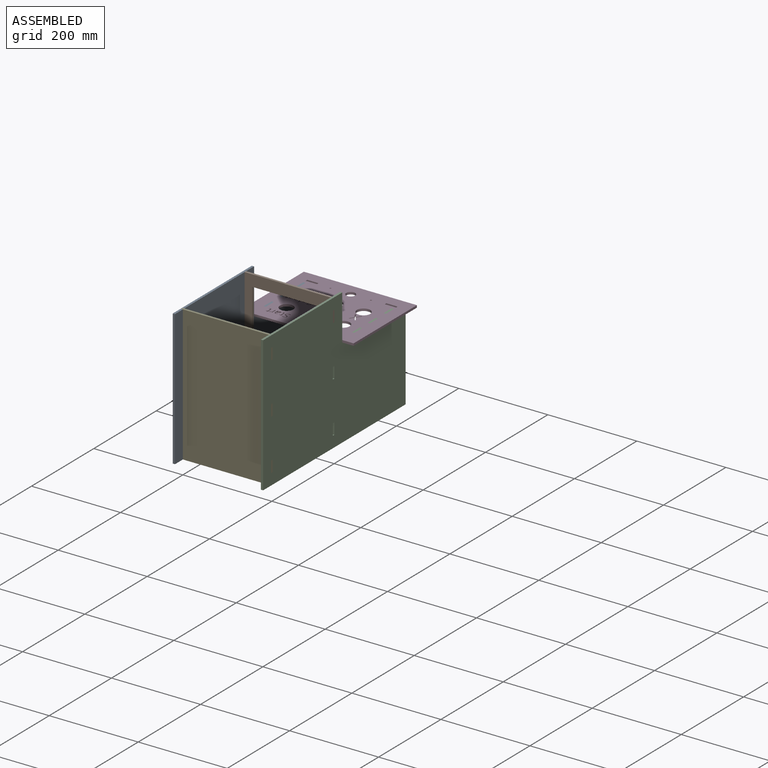
[diagram: assembled view]
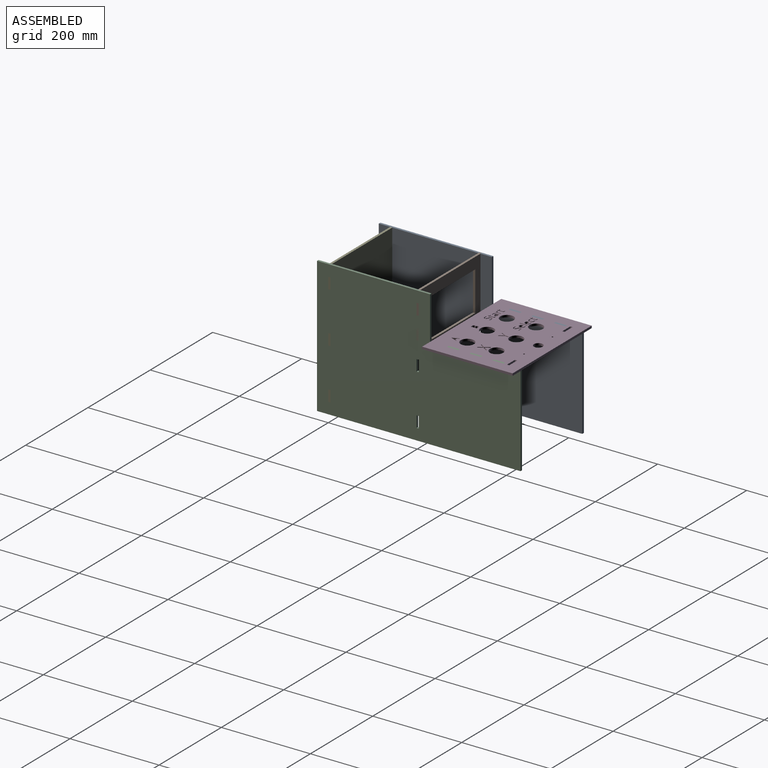
[diagram: assembled view, second angle]
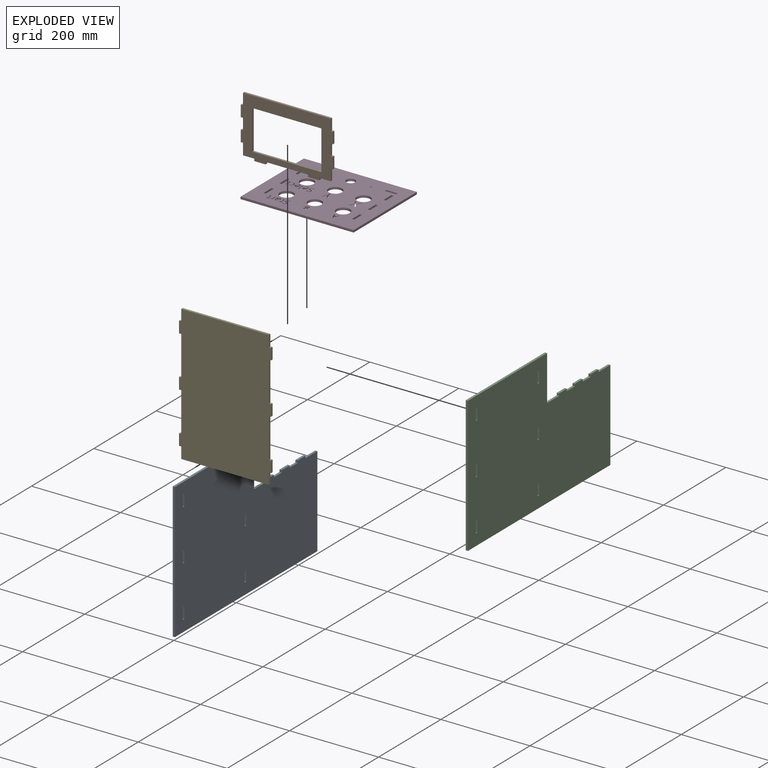
[diagram: exploded view]
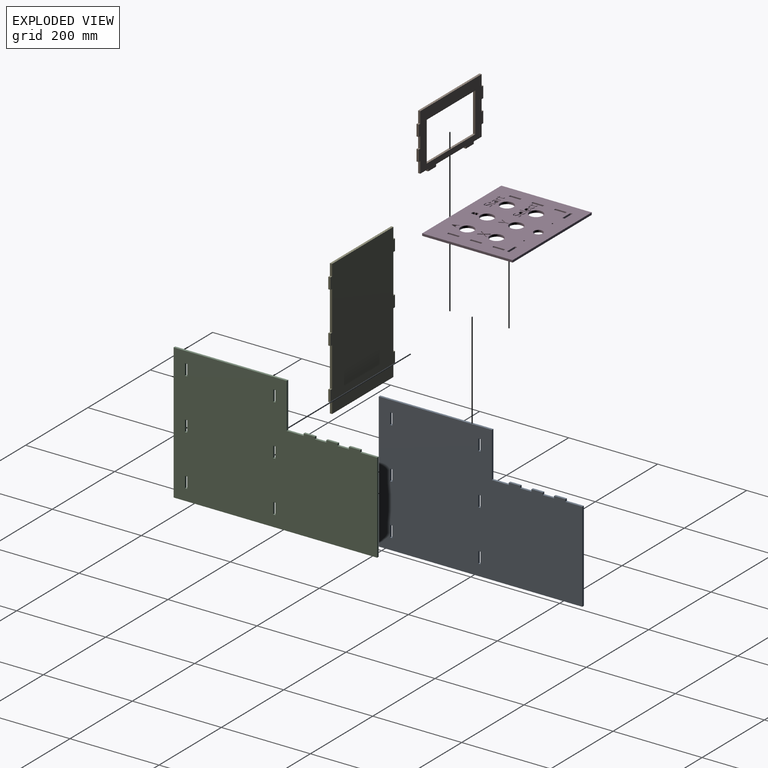
[diagram: exploded view, second angle]
ASSEMBLY  parts=5 mates=4
PART A: 44 faces, bbox 457.2x5x304.8 mm
  f0: plane 25.4x5mm, normal (1,0,0), area 127mm2, adj f1,f41,f42,f43
  f1: plane 5x5mm, normal (0,0,-1), area 25mm2, adj f0,f2,f42,f43
  f2: plane 25.4x5mm, normal (-1,0,0), area 127mm2, adj f1,f41,f42,f43
  f3: plane 25.4x5mm, normal (1,0,0), area 127mm2, adj f4,f35,f42,f43
  f4: plane 5x5mm, normal (0,0,-1), area 25mm2, adj f3,f5,f42,f43
  f5: plane 25.4x5mm, normal (-1,0,0), area 127mm2, adj f4,f35,f42,f43
  f6: plane 25.4x5mm, normal (1,0,0), area 127mm2, adj f7,f36,f42,f43
  f7: plane 5x5mm, normal (0,0,-1), area 25mm2, adj f6,f8,f42,f43
  f8: plane 25.4x5mm, normal (-1,0,0), area 127mm2, adj f7,f36,f42,f43
  f9: plane 25.4x5mm, normal (1,0,0), area 127mm2, adj f10,f37,f42,f43
  f10: plane 5x5mm, normal (0,0,-1), area 25mm2, adj f9,f11,f42,f43
  f11: plane 25.4x5mm, normal (-1,0,0), area 127mm2, adj f10,f37,f42,f43
  f12: plane 25.4x5mm, normal (1,0,0), area 127mm2, adj f13,f38,f42,f43
  f13: plane 5x5mm, normal (0,0,-1), area 25mm2, adj f12,f14,f42,f43
  f14: plane 25.4x5mm, normal (-1,0,0), area 127mm2, adj f13,f38,f42,f43
  f15: plane 25.4x5mm, normal (1,0,0), area 127mm2, adj f16,f39,f42,f43
  f16: plane 5x5mm, normal (0,0,-1), area 25mm2, adj f15,f17,f42,f43
  f17: plane 25.4x5mm, normal (-1,0,0), area 127mm2, adj f16,f39,f42,f43
  f18: plane 5x5mm, normal (-1,0,0), area 25mm2, adj f19,f40,f42,f43
  f19: plane 25.4x5mm, normal (0,0,1), area 127mm2, adj f18,f20,f42,f43
  f20: plane 5x5mm, normal (1,0,0), area 25mm2, adj f19,f21,f42,f43
  f21: plane 25.4x5mm, normal (0,0,1), area 127mm2, adj f20,f22,f42,f43
  f22: plane 5x5mm, normal (-1,0,0), area 25mm2, adj f21,f23,f42,f43
  f23: plane 25.4x5mm, normal (0,0,1), area 127mm2, adj f22,f24,f42,f43
  f24: plane 5x5mm, normal (1,0,0), area 25mm2, adj f23,f25,f42,f43
  f25: plane 25.4x5mm, normal (0,0,1), area 127mm2, adj f24,f26,f42,f43
  f26: plane 5x5mm, normal (-1,0,0), area 25mm2, adj f25,f27,f42,f43
  f27: plane 38.1x5mm, normal (0,0,1), area 190.5mm2, adj f26,f28,f42,f43
  f28: plane 203.2x5mm, normal (-1,0,0), area 1016mm2, adj f27,f29,f42,f43
  f29: plane 457.2x5mm, normal (0,0,-1), area 2286mm2, adj f28,f30,f42,f43
  f30: plane 304.8x5mm, normal (1,0,0), area 1524mm2, adj f29,f31,f42,f43
  f31: plane 254x5mm, normal (0,0,1), area 1270mm2, adj f30,f32,f42,f43
  f32: plane 101.6x5mm, normal (-1,0,0), area 508mm2, adj f31,f33,f42,f43
  f33: plane 38.1x5mm, normal (0,0,1), area 190.5mm2, adj f32,f34,f42,f43
  f34: plane 5x5mm, normal (1,0,0), area 25mm2, adj f33,f40,f42,f43
  f35: plane 5x5mm, normal (0,0,1), area 25mm2, adj f3,f5,f42,f43
  f36: plane 5x5mm, normal (0,0,1), area 25mm2, adj f6,f8,f42,f43
  f37: plane 5x5mm, normal (0,0,1), area 25mm2, adj f9,f11,f42,f43
  f38: plane 5x5mm, normal (0,0,1), area 25mm2, adj f12,f14,f42,f43
  f39: plane 5x5mm, normal (0,0,1), area 25mm2, adj f15,f17,f42,f43
  f40: plane 25.4x5mm, normal (0,0,1), area 127mm2, adj f18,f34,f42,f43
  f41: plane 5x5mm, normal (0,0,1), area 25mm2, adj f0,f2,f42,f43
  f42: plane 457.2x304.8mm, normal (0,-1,0), area 118328.4mm2, adj f0,f1,f2,f3,f4,f5,f6,f7
  f43: plane 457.2x304.8mm, normal (0,1,0), area 118328.4mm2, adj f0,f1,f2,f3,f4,f5,f6,f7
PART B: 34 faces, bbox 206.9x5x132 mm
  f0: plane 25.4x5mm, normal (0,0,-1), area 127mm2, adj f1,f31,f32,f33
  f1: plane 5x5mm, normal (-1,0,0), area 25mm2, adj f0,f2,f32,f33
  f2: plane 25.4x5mm, normal (0,0,-1), area 127mm2, adj f1,f3,f32,f33
  f3: plane 5x5mm, normal (1,0,0), area 25mm2, adj f2,f4,f32,f33
  f4: plane 95.25x5mm, normal (0,0,-1), area 476.3mm2, adj f3,f5,f32,f33
  f5: plane 5x5mm, normal (-1,0,0), area 25mm2, adj f4,f6,f32,f33
  f6: plane 25.4x5mm, normal (0,0,-1), area 127mm2, adj f5,f7,f32,f33
  f7: plane 5x5mm, normal (1,0,0), area 25mm2, adj f6,f8,f32,f33
  f8: plane 25.4x5mm, normal (0,0,-1), area 127mm2, adj f7,f9,f32,f33
  f9: plane 25.4x5mm, normal (1,0,0), area 127mm2, adj f8,f10,f32,f33
  f10: plane 5x5mm, normal (0,0,-1), area 25mm2, adj f9,f11,f32,f33
  f11: plane 25.4x5mm, normal (1,0,0), area 127mm2, adj f10,f12,f32,f33
  f12: plane 5x5mm, normal (0,0,1), area 25mm2, adj f11,f13,f32,f33
  f13: plane 25.4x5mm, normal (1,0,0), area 127mm2, adj f12,f14,f32,f33
  f14: plane 5x5mm, normal (0,0,-1), area 25mm2, adj f13,f15,f32,f33
  f15: plane 25.4x5mm, normal (1,0,0), area 127mm2, adj f14,f16,f32,f33
  f16: plane 5x5mm, normal (0,0,1), area 25mm2, adj f15,f17,f32,f33
  f17: plane 25.4x5mm, normal (1,0,0), area 127mm2, adj f16,f18,f32,f33
  f18: plane 196.85x5mm, normal (0,0,1), area 984.2mm2, adj f17,f19,f32,f33
  f19: plane 25.4x5mm, normal (-1,0,0), area 127mm2, adj f18,f20,f32,f33
  f20: plane 5x5mm, normal (0,0,1), area 25mm2, adj f19,f21,f32,f33
  f21: plane 25.4x5mm, normal (-1,0,0), area 127mm2, adj f20,f22,f32,f33
  f22: plane 5x5mm, normal (0,0,-1), area 25mm2, adj f21,f23,f32,f33
  f23: plane 25.4x5mm, normal (-1,0,0), area 127mm2, adj f22,f24,f32,f33
  f24: plane 5x5mm, normal (0,0,1), area 25mm2, adj f23,f25,f32,f33
  f25: plane 25.4x5mm, normal (-1,0,0), area 127mm2, adj f24,f26,f32,f33
  f26: plane 5x5mm, normal (0,0,-1), area 25mm2, adj f25,f31,f32,f33
  f27: plane 88.9x5mm, normal (1,0,0), area 444.5mm2, adj f28,f30,f32,f33
  f28: plane 155.58x5mm, normal (0,0,-1), area 777.9mm2, adj f27,f29,f32,f33
  f29: plane 88.9x5mm, normal (-1,0,0), area 444.5mm2, adj f28,f30,f32,f33
  f30: plane 155.58x5mm, normal (0,0,1), area 777.9mm2, adj f27,f29,f32,f33
  f31: plane 25.4x5mm, normal (-1,0,0), area 127mm2, adj f0,f26,f32,f33
  f32: plane 206.85x132mm, normal (0,-1,0), area 11931.3mm2, adj f0,f1,f2,f3,f4,f5,f6,f7
  f33: plane 206.85x132mm, normal (0,1,0), area 11931.3mm2, adj f0,f1,f2,f3,f4,f5,f6,f7
PART C: same geometry as A
PART D: 273 faces, bbox 254x5x203.2 mm
  f0: plane 12.98x5mm, normal (1,0,0), area 64.9mm2, adj f1,f270,f271,f272
  f1: plane 5x3.67mm, normal (0,0,-1), area 18.3mm2, adj f0,f2,f271,f272
  f2: extruded ~5x3.74mm, area 19.3mm2, adj f1,f3,f271,f272
  f3: extruded ~5x2.44mm, area 14.1mm2, adj f2,f4,f271,f272
  f4: extruded ~5x1.91mm, area 10.3mm2, adj f3,f5,f271,f272
  f5: extruded ~5x1.88mm, area 10.8mm2, adj f4,f6,f271,f272
  f6: plane 5x0.09mm, normal (-1,0,0), area 0.4mm2, adj f5,f7,f271,f272
  f7: extruded ~5x3.11mm, area 23.7mm2, adj f6,f8,f271,f272
  f8: extruded ~5x2.72mm, area 15.3mm2, adj f7,f9,f271,f272
  f9: extruded ~5x3.29mm, area 17.5mm2, adj f8,f270,f271,f272
  f10: extruded ~5x2.09mm, area 11.1mm2, adj f11,f238,f271,f272
  f11: extruded ~5x1.45mm, area 7.3mm2, adj f10,f12,f271,f272
  f12: plane 5x1.7mm, normal (-0.99,0,0.15), area 8.6mm2, adj f11,f13,f271,f272
  f13: extruded ~5x1.33mm, area 6.7mm2, adj f12,f14,f271,f272
  f14: extruded ~5x2.52mm, area 14.4mm2, adj f13,f15,f271,f272
  f15: extruded ~5x2.97mm, area 16.1mm2, adj f14,f16,f271,f272
  f16: plane 6.5x5mm, normal (-1,0,0), area 32.5mm2, adj f15,f17,f271,f272
  f17: plane 5x1.84mm, normal (0,0,1), area 9.2mm2, adj f16,f18,f271,f272
  f18: plane 12.12x5mm, normal (1,0,0), area 60.6mm2, adj f17,f19,f271,f272
  f19: plane 5x1.51mm, normal (0,0,-1), area 7.6mm2, adj f18,f20,f271,f272
  f20: plane 5x2.24mm, normal (-1,0,-0.09), area 11.3mm2, adj f19,f21,f271,f272
  f21: plane 5x0.09mm, normal (0,0,-1), area 0.4mm2, adj f20,f238,f271,f272
  f22: extruded ~5x1.43mm, area 8mm2, adj f23,f239,f271,f272
  f23: extruded ~5x0.94mm, area 4.7mm2, adj f22,f24,f271,f272
  f24: extruded ~5x0.72mm, area 3.7mm2, adj f23,f25,f271,f272
  f25: plane 5x1.41mm, normal (-1,0,0), area 7mm2, adj f24,f26,f271,f272
  f26: extruded ~5x0.88mm, area 4.6mm2, adj f25,f27,f271,f272
  f27: extruded ~5x1.05mm, area 5.3mm2, adj f26,f28,f271,f272
  f28: extruded ~5x3.71mm, area 29.3mm2, adj f27,f29,f271,f272
  f29: plane 7.21x5mm, normal (1,0,0), area 36.1mm2, adj f28,f30,f271,f272
  f30: plane 5x1.74mm, normal (0,0,1), area 8.7mm2, adj f29,f31,f271,f272
  f31: plane 5x0.88mm, normal (1,0,0), area 4.4mm2, adj f30,f32,f271,f272
  f32: plane 5x1.74mm, normal (0.4,0,-0.92), area 9.5mm2, adj f31,f33,f271,f272
  f33: plane 5x2.59mm, normal (0.96,0,-0.29), area 13.5mm2, adj f32,f34,f271,f272
  f34: plane 5x1.06mm, normal (0,0,-1), area 5.3mm2, adj f33,f35,f271,f272
  f35: plane 5x2.81mm, normal (-1,0,0), area 14mm2, adj f34,f36,f271,f272
  f36: plane 5x3.52mm, normal (0,0,-1), area 17.6mm2, adj f35,f37,f271,f272
  f37: plane 5x1.43mm, normal (-1,0,0), area 7.1mm2, adj f36,f38,f271,f272
  f38: plane 5x3.52mm, normal (0,0,1), area 17.6mm2, adj f37,f39,f271,f272
  f39: plane 7.13x5mm, normal (-1,0,0), area 35.7mm2, adj f38,f239,f271,f272
  f40: plane 25.4x5mm, normal (1,0,0), area 127mm2, adj f41,f240,f271,f272
  f41: plane 5x5mm, normal (0,0,-1), area 25mm2, adj f40,f42,f271,f272
  f42: plane 25.4x5mm, normal (-1,0,0), area 127mm2, adj f41,f240,f271,f272
  f43: plane 25.4x5mm, normal (1,0,0), area 127mm2, adj f44,f241,f271,f272
  f44: plane 5x5mm, normal (0,0,-1), area 25mm2, adj f43,f45,f271,f272
  f45: plane 25.4x5mm, normal (-1,0,0), area 127mm2, adj f44,f241,f271,f272
  f46: plane 5x1.36mm, normal (0,0,1), area 6.8mm2, adj f47,f242,f271,f272
  f47: plane 5x1.73mm, normal (0.98,0,0.21), area 8.8mm2, adj f46,f48,f271,f272
  f48: plane 5x0.09mm, normal (0,0,1), area 0.4mm2, adj f47,f49,f271,f272
  f49: extruded ~5x1.81mm, area 12mm2, adj f48,f50,f271,f272
  f50: extruded ~5x2.25mm, area 11.5mm2, adj f49,f51,f271,f272
  f51: extruded ~5x2.82mm, area 15.2mm2, adj f50,f52,f271,f272
  f52: extruded ~5x2.64mm, area 14.6mm2, adj f51,f53,f271,f272
  f53: extruded ~5.87x5mm, area 39.4mm2, adj f52,f54,f271,f272
  f54: plane 5x2.06mm, normal (0.03,0,-1), area 10.3mm2, adj f53,f55,f271,f272
  f55: plane 5x0.75mm, normal (1,0,0), area 3.8mm2, adj f54,f56,f271,f272
  f56: extruded ~5x2.11mm, area 11.2mm2, adj f55,f57,f271,f272
  f57: extruded ~5x1.96mm, area 10.7mm2, adj f56,f58,f271,f272
  f58: extruded ~5x3.43mm, area 17.9mm2, adj f57,f59,f271,f272
  f59: plane 5x1.41mm, normal (0.93,0,0.37), area 7.6mm2, adj f58,f60,f271,f272
  f60: extruded ~5x1.96mm, area 10.5mm2, adj f59,f61,f271,f272
  f61: extruded ~5x2.14mm, area 10.8mm2, adj f60,f62,f271,f272
  f62: extruded ~5x3.21mm, area 17.1mm2, adj f61,f63,f271,f272
  f63: extruded ~5x3.08mm, area 16.8mm2, adj f62,f242,f271,f272
  f64: extruded ~5x1.43mm, area 8mm2, adj f65,f243,f271,f272
  f65: extruded ~5x0.94mm, area 4.7mm2, adj f64,f66,f271,f272
  f66: extruded ~5x0.72mm, area 3.7mm2, adj f65,f67,f271,f272
  f67: plane 5x1.41mm, normal (-1,0,0), area 7mm2, adj f66,f68,f271,f272
  f68: extruded ~5x0.88mm, area 4.6mm2, adj f67,f69,f271,f272
  f69: extruded ~5x1.05mm, area 5.3mm2, adj f68,f70,f271,f272
  f70: extruded ~5x3.71mm, area 29.3mm2, adj f69,f71,f271,f272
  f71: plane 7.21x5mm, normal (1,0,0), area 36.1mm2, adj f70,f72,f271,f272
  f72: plane 5x1.74mm, normal (0,0,1), area 8.7mm2, adj f71,f73,f271,f272
  f73: plane 5x0.88mm, normal (1,0,0), area 4.4mm2, adj f72,f74,f271,f272
  f74: plane 5x1.74mm, normal (0.4,0,-0.92), area 9.5mm2, adj f73,f75,f271,f272
  f75: plane 5x2.59mm, normal (0.96,0,-0.29), area 13.5mm2, adj f74,f76,f271,f272
  f76: plane 5x1.06mm, normal (0,0,-1), area 5.3mm2, adj f75,f77,f271,f272
  f77: plane 5x2.81mm, normal (-1,0,0), area 14mm2, adj f76,f78,f271,f272
  f78: plane 5x3.52mm, normal (0,0,-1), area 17.6mm2, adj f77,f79,f271,f272
  f79: plane 5x1.43mm, normal (-1,0,0), area 7.1mm2, adj f78,f80,f271,f272
  f80: plane 5x3.52mm, normal (0,0,1), area 17.6mm2, adj f79,f81,f271,f272
  f81: plane 7.13x5mm, normal (-1,0,0), area 35.7mm2, adj f80,f243,f271,f272
  f82: extruded ~5x2.7mm, area 14.7mm2, adj f83,f244,f271,f272
  f83: extruded ~5x3.33mm, area 19.1mm2, adj f82,f84,f271,f272
  f84: extruded ~5x4.2mm, area 22.2mm2, adj f83,f85,f271,f272
  f85: extruded ~5x4.42mm, area 22.6mm2, adj f84,f86,f271,f272
  f86: plane 5x1.81mm, normal (1,0,0), area 9.1mm2, adj f85,f87,f271,f272
  f87: extruded ~5x2.17mm, area 11.4mm2, adj f86,f88,f271,f272
  f88: extruded ~5x2.32mm, area 11.7mm2, adj f87,f89,f271,f272
  f89: extruded ~5x2.83mm, area 14.8mm2, adj f88,f90,f271,f272
  f90: extruded ~5x1.99mm, area 11.5mm2, adj f89,f91,f271,f272
  f91: extruded ~5x1.37mm, area 7.2mm2, adj f90,f92,f271,f272
  f92: extruded ~5x1.13mm, area 7.6mm2, adj f91,f93,f271,f272
  f93: extruded ~5x2.4mm, area 13.1mm2, adj f92,f94,f271,f272
  f94: extruded ~5x3.22mm, area 18.9mm2, adj f93,f95,f271,f272
  f95: extruded ~5x2.89mm, area 15.6mm2, adj f94,f96,f271,f272
  f96: extruded ~5x2.97mm, area 17.1mm2, adj f95,f97,f271,f272
  f97: extruded ~5x3.72mm, area 19.8mm2, adj f96,f98,f271,f272
  f98: extruded ~5x4.43mm, area 22.8mm2, adj f97,f99,f271,f272
  f99: plane 5x1.64mm, normal (-0.94,0,0.34), area 8.7mm2, adj f98,f100,f271,f272
  f100: extruded ~5x3.89mm, area 20mm2, adj f99,f101,f271,f272
  f101: extruded ~5x2.33mm, area 12.3mm2, adj f100,f102,f271,f272
  f102: extruded ~5x1.78mm, area 10.2mm2, adj f101,f103,f271,f272
  f103: extruded ~5x1.38mm, area 7.1mm2, adj f102,f104,f271,f272
  f104: extruded ~5x1.05mm, area 7.3mm2, adj f103,f105,f271,f272
  f105: extruded ~5x2.25mm, area 12.3mm2, adj f104,f244,f271,f272
  f106: plane 5x1.64mm, normal (0,0,1), area 8.2mm2, adj f107,f245,f271,f272
  f107: plane 5x4.35mm, normal (0.93,0,0.36), area 23.3mm2, adj f106,f108,f271,f272
  f108: plane 5.48x5mm, normal (0,0,1), area 27.4mm2, adj f107,f109,f271,f272
  f109: plane 5x4.35mm, normal (-0.93,0,0.36), area 23.3mm2, adj f108,f110,f271,f272
  f110: plane 5x1.61mm, normal (0,0,1), area 8mm2, adj f109,f111,f271,f272
  f111: plane 13.72x5.4mm, normal (0.93,0,-0.37), area 73.7mm2, adj f110,f112,f271,f272
  f112: plane 5x1.34mm, normal (0,0,-1), area 6.7mm2, adj f111,f245,f271,f272
  f113: plane 11.27x7.14mm, normal (-0.84,0,-0.54), area 66.7mm2, adj f114,f246,f271,f272
  f114: plane 5x2.83mm, normal (0,0,1), area 14.1mm2, adj f113,f115,f271,f272
  f115: plane 9.41x5.75mm, normal (0.85,0,0.52), area 55.2mm2, adj f114,f116,f271,f272
  f116: plane 9.41x5.86mm, normal (-0.85,0,0.53), area 55.4mm2, adj f115,f117,f271,f272
  f117: plane 5x2.64mm, normal (0,0,1), area 13.2mm2, adj f116,f118,f271,f272
  f118: plane 11.19x7.12mm, normal (0.84,0,-0.54), area 66.3mm2, adj f117,f119,f271,f272
  f119: plane 10.22x6.63mm, normal (0.84,0,0.54), area 60.9mm2, adj f118,f120,f271,f272
  f120: plane 5x2.75mm, normal (0,0,-1), area 13.8mm2, adj f119,f121,f271,f272
  f121: plane 8.48x5.31mm, normal (-0.85,0,-0.53), area 50mm2, adj f120,f122,f271,f272
  f122: plane 8.48x5.36mm, normal (0.85,0,-0.53), area 50.2mm2, adj f121,f123,f271,f272
  f123: plane 5x2.65mm, normal (0,0,-1), area 13.2mm2, adj f122,f246,f271,f272
  f124: plane 9.45x5.01mm, normal (-0.88,0,-0.47), area 53.5mm2, adj f125,f247,f271,f272
  f125: plane 9.45x5.04mm, normal (0.88,0,-0.47), area 53.6mm2, adj f124,f126,f271,f272
  f126: plane 5x2.38mm, normal (0,0,-1), area 11.9mm2, adj f125,f127,f271,f272
  f127: plane 11.57x6.31mm, normal (-0.88,0,0.48), area 65.9mm2, adj f126,f128,f271,f272
  f128: plane 7.33x5mm, normal (-1,0,0), area 36.7mm2, adj f127,f129,f271,f272
  f129: plane 5x2.22mm, normal (0,0,1), area 11.1mm2, adj f128,f130,f271,f272
  f130: plane 7.23x5mm, normal (1,0,0), area 36.1mm2, adj f129,f131,f271,f272
  f131: plane 11.67x6.3mm, normal (0.88,0,0.47), area 66.3mm2, adj f130,f247,f271,f272
  f132: extruded ~5x2.66mm, area 14.4mm2, adj f133,f248,f271,f272
  f133: extruded ~5x3.28mm, area 18.8mm2, adj f132,f134,f271,f272
  f134: extruded ~5x4.14mm, area 21.9mm2, adj f133,f135,f271,f272
  f135: extruded ~5x4.36mm, area 22.3mm2, adj f134,f136,f271,f272
  f136: plane 5x1.79mm, normal (1,0,0), area 8.9mm2, adj f135,f137,f271,f272
  f137: extruded ~5x2.14mm, area 11.2mm2, adj f136,f138,f271,f272
  f138: extruded ~5x2.29mm, area 11.5mm2, adj f137,f139,f271,f272
  f139: extruded ~5x2.79mm, area 14.6mm2, adj f138,f140,f271,f272
  f140: extruded ~5x1.96mm, area 11.3mm2, adj f139,f141,f271,f272
  f141: extruded ~5x1.36mm, area 7.1mm2, adj f140,f142,f271,f272
  f142: extruded ~5x1.11mm, area 7.5mm2, adj f141,f143,f271,f272
  f143: extruded ~5x2.37mm, area 12.9mm2, adj f142,f144,f271,f272
  f144: extruded ~5x3.18mm, area 18.7mm2, adj f143,f145,f271,f272
  f145: extruded ~5x2.85mm, area 15.3mm2, adj f144,f146,f271,f272
  f146: extruded ~5x2.93mm, area 16.8mm2, adj f145,f147,f271,f272
  f147: extruded ~5x3.67mm, area 19.5mm2, adj f146,f148,f271,f272
  f148: extruded ~5x4.37mm, area 22.4mm2, adj f147,f149,f271,f272
  f149: plane 5x1.61mm, normal (-0.94,0,0.34), area 8.6mm2, adj f148,f150,f271,f272
  f150: extruded ~5x3.84mm, area 19.8mm2, adj f149,f151,f271,f272
  f151: extruded ~5x2.3mm, area 12.1mm2, adj f150,f152,f271,f272
  f152: extruded ~5x1.76mm, area 10.1mm2, adj f151,f153,f271,f272
  f153: extruded ~5x1.36mm, area 7mm2, adj f152,f154,f271,f272
  f154: extruded ~5x1.03mm, area 7.2mm2, adj f153,f155,f271,f272
  f155: extruded ~5x2.22mm, area 12.1mm2, adj f154,f248,f271,f272
  f156: extruded ~5x2.07mm, area 10.4mm2, adj f157,f249,f271,f272
  f157: extruded ~5x4.18mm, area 23.1mm2, adj f156,f158,f271,f272
  f158: extruded ~5x4.48mm, area 24.3mm2, adj f157,f159,f271,f272
  f159: extruded ~5x4.59mm, area 24.5mm2, adj f158,f160,f271,f272
  f160: extruded ~5x3.82mm, area 21.7mm2, adj f159,f161,f271,f272
  f161: extruded ~5x3.55mm, area 19.9mm2, adj f160,f162,f271,f272
  f162: extruded ~5x3.9mm, area 21mm2, adj f161,f163,f271,f272
  f163: plane 5x1.14mm, normal (-1,0,0), area 5.7mm2, adj f162,f164,f271,f272
  f164: plane 8.23x5mm, normal (0,0,1), area 41.1mm2, adj f163,f165,f271,f272
  f165: extruded ~5x3.19mm, area 17.2mm2, adj f164,f166,f271,f272
  f166: extruded ~5x2.84mm, area 15.7mm2, adj f165,f167,f271,f272
  f167: extruded ~5x3.81mm, area 19.6mm2, adj f166,f168,f271,f272
  f168: plane 5x1.62mm, normal (-1,0,0), area 8.1mm2, adj f167,f249,f271,f272
  f169: extruded ~5x3.02mm, area 15.6mm2, adj f170,f250,f271,f272
  f170: extruded ~5x4.02mm, area 22.3mm2, adj f169,f171,f271,f272
  f171: extruded ~5x4.52mm, area 24.2mm2, adj f170,f172,f271,f272
  f172: extruded ~5x4.63mm, area 24.8mm2, adj f171,f173,f271,f272
  f173: extruded ~5x4.12mm, area 22.9mm2, adj f172,f174,f271,f272
  f174: extruded ~5x1.72mm, area 8.7mm2, adj f173,f175,f271,f272
  f175: extruded ~5x1.35mm, area 7.1mm2, adj f174,f176,f271,f272
  f176: plane 5x1.54mm, normal (-0.94,0,0.34), area 8.2mm2, adj f175,f177,f271,f272
  f177: extruded ~5x1.31mm, area 6.8mm2, adj f176,f178,f271,f272
  f178: extruded ~5x1.25mm, area 6.3mm2, adj f177,f179,f271,f272
  f179: extruded ~5x4.64mm, area 33.7mm2, adj f178,f180,f271,f272
  f180: extruded ~5x3.38mm, area 17.8mm2, adj f179,f181,f271,f272
  f181: extruded ~5x2.63mm, area 15mm2, adj f180,f182,f271,f272
  f182: extruded ~5x3.06mm, area 15.7mm2, adj f181,f250,f271,f272
  f183: extruded ~5x1.41mm, area 7.8mm2, adj f184,f251,f271,f272
  f184: extruded ~5x0.93mm, area 4.7mm2, adj f183,f185,f271,f272
  f185: extruded ~5x0.71mm, area 3.6mm2, adj f184,f186,f271,f272
  f186: plane 5x1.39mm, normal (-1,0,0), area 6.9mm2, adj f185,f187,f271,f272
  f187: extruded ~5x0.87mm, area 4.5mm2, adj f186,f188,f271,f272
  f188: extruded ~5x1.03mm, area 5.2mm2, adj f187,f189,f271,f272
  f189: extruded ~5x3.65mm, area 28.9mm2, adj f188,f190,f271,f272
  f190: plane 7.11x5mm, normal (1,0,0), area 35.6mm2, adj f189,f191,f271,f272
  f191: plane 5x1.71mm, normal (0,0,1), area 8.6mm2, adj f190,f192,f271,f272
  f192: plane 5x0.87mm, normal (1,0,0), area 4.4mm2, adj f191,f193,f271,f272
  f193: plane 5x1.71mm, normal (0.4,0,-0.92), area 9.4mm2, adj f192,f194,f271,f272
  f194: plane 5x2.55mm, normal (0.96,0,-0.29), area 13.3mm2, adj f193,f195,f271,f272
  f195: plane 5x1.05mm, normal (0,0,-1), area 5.2mm2, adj f194,f196,f271,f272
  f196: plane 5x2.77mm, normal (-1,0,0), area 13.9mm2, adj f195,f197,f271,f272
  f197: plane 5x3.47mm, normal (0,0,-1), area 17.3mm2, adj f196,f198,f271,f272
  f198: plane 5x1.41mm, normal (-1,0,0), area 7mm2, adj f197,f199,f271,f272
  f199: plane 5x3.47mm, normal (0,0,1), area 17.3mm2, adj f198,f200,f271,f272
  f200: plane 7.03x5mm, normal (-1,0,0), area 35.2mm2, adj f199,f251,f271,f272
  f201: plane 25.4x5mm, normal (1,0,0), area 127mm2, adj f202,f253,f271,f272
  f202: plane 5x5mm, normal (0,0,-1), area 25mm2, adj f201,f203,f271,f272
  f203: plane 25.4x5mm, normal (-1,0,0), area 127mm2, adj f202,f253,f271,f272
  f204: plane 25.4x5mm, normal (1,0,0), area 127mm2, adj f205,f254,f271,f272
  f205: plane 5x5mm, normal (0,0,-1), area 25mm2, adj f204,f206,f271,f272
  f206: plane 25.4x5mm, normal (-1,0,0), area 127mm2, adj f205,f254,f271,f272
  f207: extruded ~5x2.07mm, area 10.4mm2, adj f208,f255,f271,f272
  f208: extruded ~5x4.18mm, area 23.1mm2, adj f207,f209,f271,f272
  f209: extruded ~5x4.48mm, area 24.3mm2, adj f208,f210,f271,f272
  f210: extruded ~5x4.59mm, area 24.5mm2, adj f209,f211,f271,f272
  f211: extruded ~5x3.82mm, area 21.7mm2, adj f210,f212,f271,f272
  f212: extruded ~5x3.55mm, area 19.9mm2, adj f211,f213,f271,f272
  f213: extruded ~5x3.9mm, area 21mm2, adj f212,f214,f271,f272
  f214: plane 5x1.14mm, normal (-1,0,0), area 5.7mm2, adj f213,f215,f271,f272
  f215: plane 8.23x5mm, normal (0,0,1), area 41.1mm2, adj f214,f216,f271,f272
  f216: extruded ~5x3.19mm, area 17.2mm2, adj f215,f217,f271,f272
  f217: extruded ~5x2.84mm, area 15.7mm2, adj f216,f218,f271,f272
  f218: extruded ~5x3.81mm, area 19.6mm2, adj f217,f219,f271,f272
  f219: plane 5x1.62mm, normal (-1,0,0), area 8.1mm2, adj f218,f255,f271,f272
  f220: plane 16.97x5mm, normal (-1,0,0), area 84.8mm2, adj f221,f256,f271,f272
  f221: plane 5x1.81mm, normal (0,0,1), area 9.1mm2, adj f220,f222,f271,f272
  f222: plane 16.97x5mm, normal (1,0,0), area 84.8mm2, adj f221,f256,f271,f272
  f223: plane 25.4x5mm, normal (0,0,1), area 127mm2, adj f224,f259,f271,f272
  f224: plane 5x5mm, normal (1,0,0), area 25mm2, adj f223,f225,f271,f272
  f225: plane 25.4x5mm, normal (0,0,-1), area 127mm2, adj f224,f259,f271,f272
  f226: plane 25.4x5mm, normal (0,0,1), area 127mm2, adj f227,f260,f271,f272
  f227: plane 5x5mm, normal (1,0,0), area 25mm2, adj f226,f228,f271,f272
  f228: plane 25.4x5mm, normal (0,0,-1), area 127mm2, adj f227,f260,f271,f272
  f229: plane 25.4x5mm, normal (1,0,0), area 127mm2, adj f230,f265,f271,f272
  f230: plane 5x5mm, normal (0,0,-1), area 25mm2, adj f229,f231,f271,f272
  f231: plane 25.4x5mm, normal (-1,0,0), area 127mm2, adj f230,f265,f271,f272
  f232: plane 25.4x5mm, normal (1,0,0), area 127mm2, adj f233,f266,f271,f272
  f233: plane 5x5mm, normal (0,0,-1), area 25mm2, adj f232,f234,f271,f272
  f234: plane 25.4x5mm, normal (-1,0,0), area 127mm2, adj f233,f266,f271,f272
  f235: plane 203.2x5mm, normal (1,0,0), area 1016mm2, adj f236,f269,f271,f272
  f236: plane 254x5mm, normal (0,0,1), area 1270mm2, adj f235,f237,f271,f272
  f237: plane 203.2x5mm, normal (-1,0,0), area 1016mm2, adj f236,f269,f271,f272
  f238: extruded ~5x1.82mm, area 12.3mm2, adj f10,f21,f271,f272
  f239: extruded ~5x1.68mm, area 9mm2, adj f22,f39,f271,f272
  f240: plane 5x5mm, normal (0,0,1), area 25mm2, adj f40,f42,f271,f272
  f241: plane 5x5mm, normal (0,0,1), area 25mm2, adj f43,f45,f271,f272
  f242: plane 8.27x5mm, normal (-1,0,0), area 41.4mm2, adj f46,f63,f271,f272
  f243: extruded ~5x1.68mm, area 9mm2, adj f64,f81,f271,f272
  f244: extruded ~5x3.5mm, area 20.2mm2, adj f82,f105,f271,f272
  f245: plane 13.72x5.37mm, normal (-0.93,0,-0.36), area 73.7mm2, adj f106,f112,f271,f272
  f246: plane 10.13x6.63mm, normal (-0.84,0,0.55), area 60.5mm2, adj f113,f123,f271,f272
  f247: plane 5x2.4mm, normal (0,0,-1), area 12mm2, adj f124,f131,f271,f272
  f248: extruded ~5x3.45mm, area 19.9mm2, adj f132,f155,f271,f272
  f249: extruded ~5x1.81mm, area 9.6mm2, adj f156,f168,f271,f272
  f250: plane 5x1.6mm, normal (-1,0,0), area 8mm2, adj f169,f182,f271,f272
  f251: extruded ~5x1.66mm, area 8.9mm2, adj f183,f200,f271,f272
  f252: cylinder r=15mm len=30mm, axis (0,1,0), area 471.2mm2, adj f271,f272
  f253: plane 5x5mm, normal (0,0,1), area 25mm2, adj f201,f203,f271,f272
  f254: plane 5x5mm, normal (0,0,1), area 25mm2, adj f204,f206,f271,f272
  f255: extruded ~5x1.81mm, area 9.6mm2, adj f207,f219,f271,f272
  f256: plane 5x1.81mm, normal (0,0,-1), area 9.1mm2, adj f220,f222,f271,f272
  f257: cylinder r=15mm len=30mm, axis (0,1,0), area 471.2mm2, adj f271,f272
  f258: cylinder r=15mm len=30mm, axis (0,1,0), area 471.2mm2, adj f271,f272
  f259: plane 5x5mm, normal (-1,0,0), area 25mm2, adj f223,f225,f271,f272
  f260: plane 5x5mm, normal (-1,0,0), area 25mm2, adj f226,f228,f271,f272
  f261: cylinder r=1.75mm len=5mm, axis (0,1,0), area 55mm2, adj f271,f272
  f262: cylinder r=1.75mm len=5mm, axis (0,1,0), area 55mm2, adj f271,f272
  f263: cylinder r=10mm len=20mm, axis (0,1,0), area 314.2mm2, adj f271,f272
  f264: cylinder r=15mm len=30mm, axis (0,1,0), area 471.2mm2, adj f271,f272
  f265: plane 5x5mm, normal (0,0,1), area 25mm2, adj f229,f231,f271,f272
  f266: plane 5x5mm, normal (0,0,1), area 25mm2, adj f232,f234,f271,f272
  f267: cylinder r=15mm len=30mm, axis (0,1,0), area 471.2mm2, adj f271,f272
  f268: cylinder r=15mm len=30mm, axis (0,1,0), area 471.2mm2, adj f271,f272
  f269: plane 254x5mm, normal (0,0,-1), area 1270mm2, adj f235,f237,f271,f272
  f270: plane 5x4.53mm, normal (0,0,1), area 22.6mm2, adj f0,f9,f271,f272
  f271: plane 254x203.2mm, normal (0,-1,0), area 45119.9mm2, adj f0,f1,f2,f3,f4,f5,f6,f7
  f272: plane 254x203.2mm, normal (0,1,0), area 45119.9mm2, adj f0,f1,f2,f3,f4,f5,f6,f7
PART E: 30 faces, bbox 206.9x5x304.8 mm
  f0: plane 25.4x5mm, normal (1,0,0), area 127mm2, adj f1,f27,f28,f29
  f1: plane 5x5mm, normal (0,0,-1), area 25mm2, adj f0,f2,f28,f29
  f2: plane 25.4x5mm, normal (1,0,0), area 127mm2, adj f1,f3,f28,f29
  f3: plane 5x5mm, normal (0,0,1), area 25mm2, adj f2,f4,f28,f29
  f4: plane 88.9x5mm, normal (1,0,0), area 444.5mm2, adj f3,f5,f28,f29
  f5: plane 5x5mm, normal (0,0,-1), area 25mm2, adj f4,f6,f28,f29
  f6: plane 25.4x5mm, normal (1,0,0), area 127mm2, adj f5,f7,f28,f29
  f7: plane 5x5mm, normal (0,0,1), area 25mm2, adj f6,f8,f28,f29
  f8: plane 88.9x5mm, normal (1,0,0), area 444.5mm2, adj f7,f9,f28,f29
  f9: plane 5x5mm, normal (0,0,-1), area 25mm2, adj f8,f10,f28,f29
  f10: plane 25.4x5mm, normal (1,0,0), area 127mm2, adj f9,f11,f28,f29
  f11: plane 5x5mm, normal (0,0,1), area 25mm2, adj f10,f12,f28,f29
  f12: plane 25.4x5mm, normal (1,0,0), area 127mm2, adj f11,f13,f28,f29
  f13: plane 196.85x5mm, normal (0,0,1), area 984.3mm2, adj f12,f14,f28,f29
  f14: plane 25.4x5mm, normal (-1,0,0), area 127mm2, adj f13,f15,f28,f29
  f15: plane 5x5mm, normal (0,0,1), area 25mm2, adj f14,f16,f28,f29
  f16: plane 25.4x5mm, normal (-1,0,0), area 127mm2, adj f15,f17,f28,f29
  f17: plane 5x5mm, normal (0,0,-1), area 25mm2, adj f16,f18,f28,f29
  f18: plane 88.9x5mm, normal (-1,0,0), area 444.5mm2, adj f17,f19,f28,f29
  f19: plane 5x5mm, normal (0,0,1), area 25mm2, adj f18,f20,f28,f29
  f20: plane 25.4x5mm, normal (-1,0,0), area 127mm2, adj f19,f21,f28,f29
  f21: plane 5x5mm, normal (0,0,-1), area 25mm2, adj f20,f22,f28,f29
  f22: plane 88.9x5mm, normal (-1,0,0), area 444.5mm2, adj f21,f23,f28,f29
  f23: plane 5x5mm, normal (0,0,1), area 25mm2, adj f22,f24,f28,f29
  f24: plane 25.4x5mm, normal (-1,0,0), area 127mm2, adj f23,f25,f28,f29
  f25: plane 5x5mm, normal (0,0,-1), area 25mm2, adj f24,f26,f28,f29
  f26: plane 25.4x5mm, normal (-1,0,0), area 127mm2, adj f25,f27,f28,f29
  f27: plane 196.85x5mm, normal (0,0,-1), area 984.3mm2, adj f0,f26,f28,f29
  f28: plane 304.8x206.85mm, normal (0,-1,0), area 60761.9mm2, adj f0,f1,f2,f3,f4,f5,f6,f7
  f29: plane 304.8x206.85mm, normal (0,1,0), area 60761.9mm2, adj f0,f1,f2,f3,f4,f5,f6,f7
PLACE A rot(axis=(0,0,-1),90deg) t=(404.66,450.07,17.54)mm
PLACE B t=(-172.27,25.47,245.38)mm
PLACE C rot(axis=(0,0,-1),90deg) t=(602.86,450.07,17.54)mm
PLACE D rot(axis=(0,0.71,-0.71),180deg) t=(552.52,182.75,140.35)mm
PLACE E t=(882.61,-172.73,190.68)mm
MATE fastened D.f271 <-> A.f40  axis (0,0,1) through (399.66,101.67,145.35)mm
MATE fastened E.f10 <-> C.f43  axis (1,0,0) through (602.86,-172.73,203.85)mm
MATE fastened C.f40 <-> D.f271  axis (0,0,1) through (597.86,101.67,145.35)mm
MATE fastened B.f15 <-> C.f43  axis (1,0,0) through (602.86,25.47,203.85)mm
